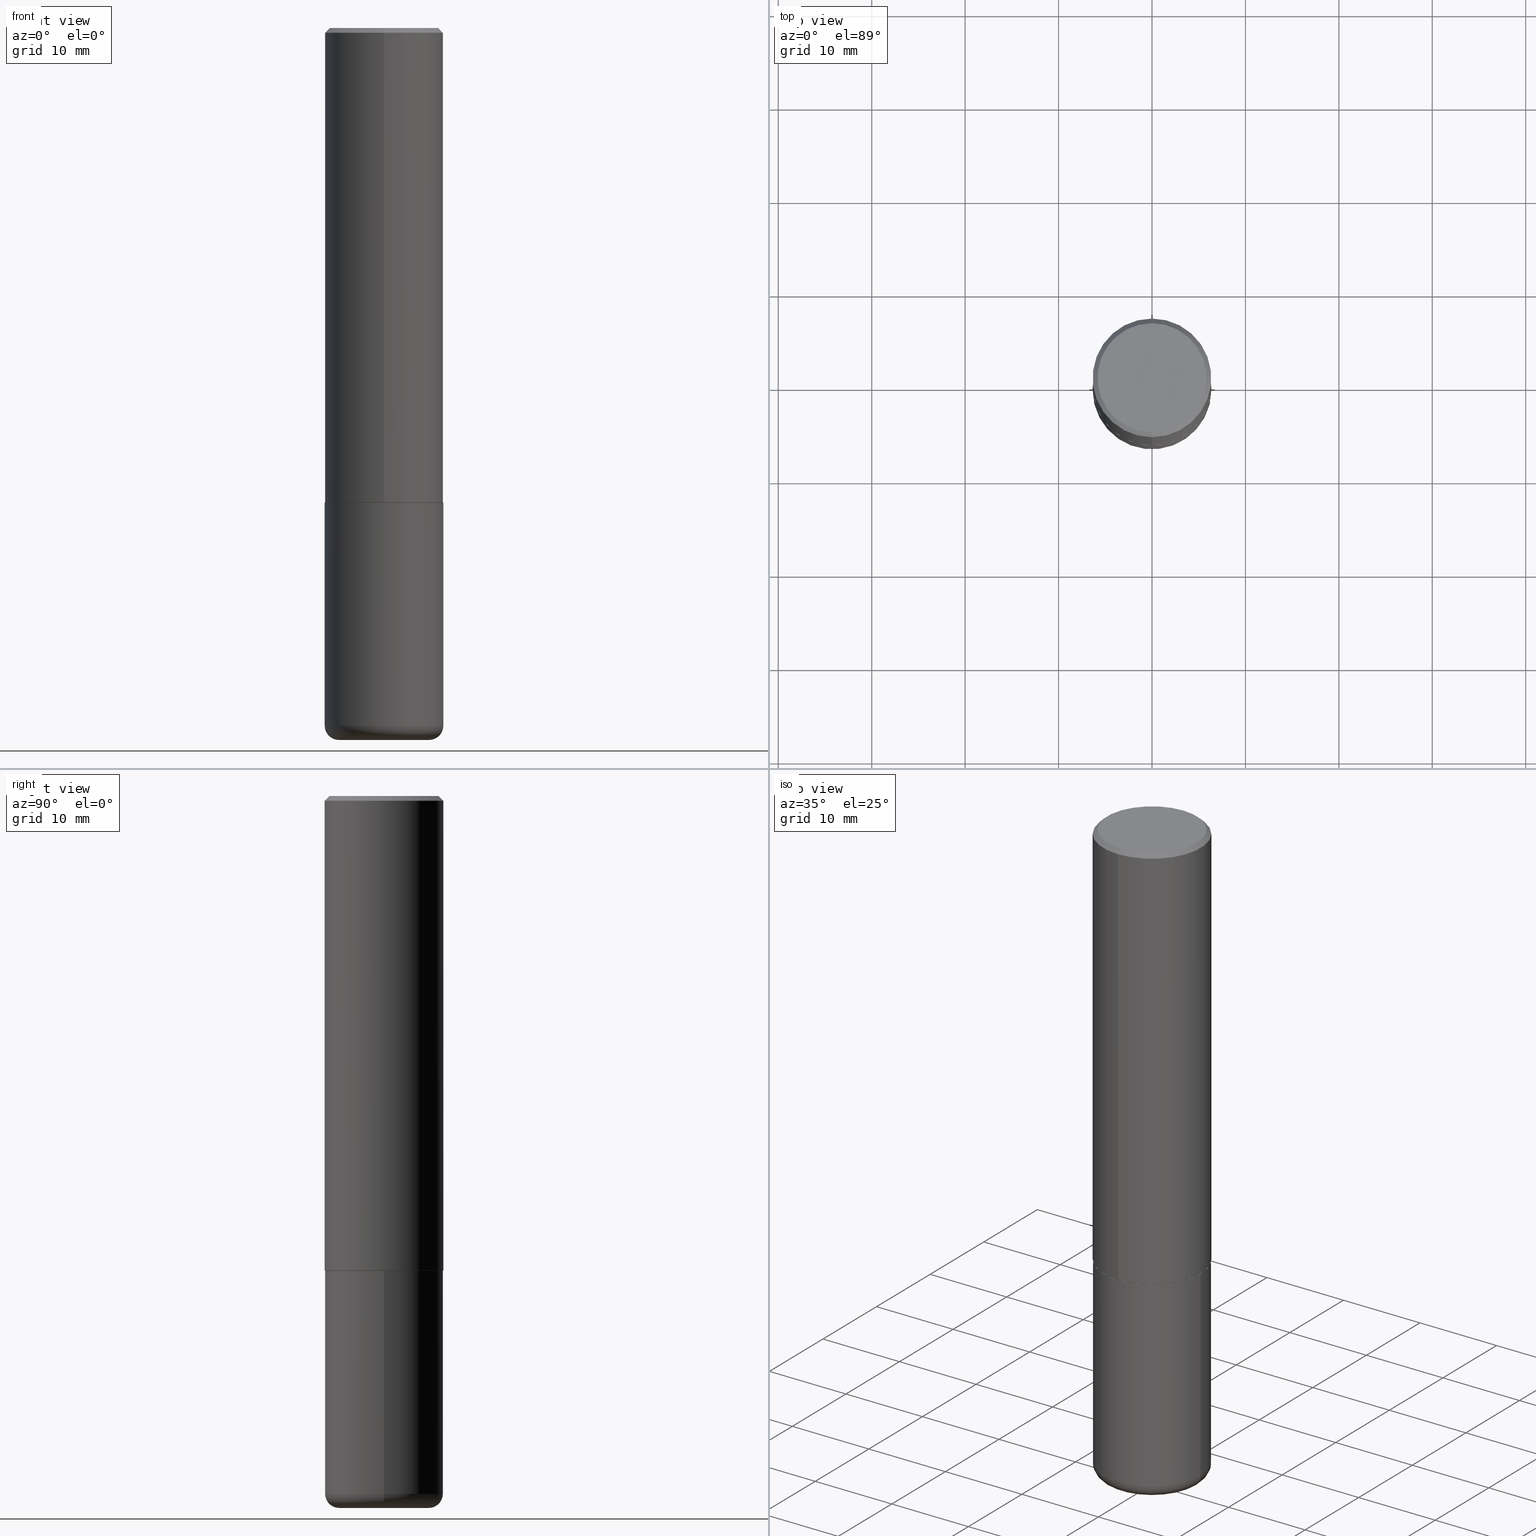
[diagram: canonical four-view strip — front | top / right | iso, engineering-drawing reading convention]
A machine part, canonical four-view strip (front | top / right | iso — engineering-drawing reading convention). The complete STEP part file that produces these views, byte-faithful:
ISO-10303-21;
HEADER;
FILE_DESCRIPTION (( 'STEP AP203' ),
    '1' );
FILE_NAME ('38267.STEP',
    '2024-03-02T20:11:27',
    ( '' ),
    ( '' ),
    'SwSTEP 2.0',
    'SolidWorks 2023',
    '' );
FILE_SCHEMA (( 'CONFIG_CONTROL_DESIGN' ));
ENDSEC;

DATA;
#1 = CARTESIAN_POINT ( 'NONE',  ( 0.2500000000000000000, -8.728703347107858632E-15, -2.000000000000000444 ) ) ;
#2 = CIRCLE ( 'NONE', #139, 0.2500000000000000000 ) ;
#3 = ADVANCED_FACE ( 'NONE', ( #291 ), #254, .F. ) ;
#4 = DIRECTION ( 'NONE',  ( -6.982962677686265133E-15, -1.000000000000000000, 3.291383124896702687E-15 ) ) ;
#5 = FACE_OUTER_BOUND ( 'NONE', #15, .T. ) ;
#6 = EDGE_CURVE ( 'NONE', #182, #209, #66, .T. ) ;
#7 =( NAMED_UNIT ( * ) PLANE_ANGLE_UNIT ( ) SI_UNIT ( $, .RADIAN. ) );
#8 = ORIENTED_EDGE ( 'NONE', *, *, #393, .F. ) ;
#9 = EDGE_CURVE ( 'NONE', #376, #23, #234, .T. ) ;
#10 = DIRECTION ( 'NONE',  ( 1.000000000000000000, -6.982962677686265133E-15, 4.883557194083112340E-29 ) ) ;
#11 = ORIENTED_EDGE ( 'NONE', *, *, #285, .F. ) ;
#12 = APPLICATION_PROTOCOL_DEFINITION ( 'international standard', 'config_control_design', 1994, #55 ) ;
#13 = AXIS2_PLACEMENT_3D ( 'NONE', #350, #319, #129 ) ;
#14 = ORIENTED_EDGE ( 'NONE', *, *, #30, .T. ) ;
#15 = EDGE_LOOP ( 'NONE', ( #335, #143, #146, #29 ) ) ;
#16 = COORDINATED_UNIVERSAL_TIME_OFFSET ( 5, 0, .BEHIND. ) ;
#17 = FACE_OUTER_BOUND ( 'NONE', #25, .T. ) ;
#18 = AXIS2_PLACEMENT_3D ( 'NONE', #315, #24, #192 ) ;
#19 = CARTESIAN_POINT ( 'NONE',  ( 4.890937612370273754E-29, -6.982962677686291954E-15, -2.000000000000000444 ) ) ;
#20 = LOCAL_TIME ( 15, 11, 27.00000000000000000, #16 ) ;
#21 = APPROVAL_ROLE ( '' ) ;
#22 = DIRECTION ( 'NONE',  ( -1.000000000000000000, 6.982962677686265922E-15, -4.876176775795935793E-29 ) ) ;
#23 = VERTEX_POINT ( 'NONE', #106 ) ;
#24 = DIRECTION ( 'NONE',  ( -2.444313243422440590E-29, 3.493136170489874041E-15, 1.000000000000000000 ) ) ;
#25 = EDGE_LOOP ( 'NONE', ( #339, #215, #258, #245 ) ) ;
#26 = FACE_OUTER_BOUND ( 'NONE', #161, .T. ) ;
#27 = CIRCLE ( 'NONE', #359, 0.2489999999999999991 ) ;
#28 = APPROVAL_PERSON_ORGANIZATION ( #365, #112, #21 ) ;
#29 = ORIENTED_EDGE ( 'NONE', *, *, #236, .F. ) ;
#30 = EDGE_CURVE ( 'NONE', #23, #376, #86, .T. ) ;
#31 = DIRECTION ( 'NONE',  ( -2.444313243422440590E-29, 3.493136170489874041E-15, 1.000000000000000000 ) ) ;
#32 = CARTESIAN_POINT ( 'NONE',  ( -1.738757706743831360E-15, -0.2490000000000069935, -1.999999999999999778 ) ) ;
#33 = CARTESIAN_POINT ( 'NONE',  ( 4.888626486844882862E-29, -6.986272340979750449E-15, -2.000000000000000444 ) ) ;
#34 = DIRECTION ( 'NONE',  ( -1.000000000000000000, 7.105427357600997914E-15, 0.000000000000000000 ) ) ;
#35 = MANIFOLD_SOLID_BREP ( 'Body-Move/Copy2[2]', #294 ) ;
#36 = PRODUCT_RELATED_PRODUCT_CATEGORY ( 'detail', '', ( #82 ) ) ;
#37 = CARTESIAN_POINT ( 'NONE',  ( 4.886182173601459090E-29, -6.982779204809258546E-15, -1.999000000000000110 ) ) ;
#38 = EDGE_CURVE ( 'NONE', #396, #152, #322, .T. ) ;
#39 = AXIS2_PLACEMENT_3D ( 'NONE', #138, #256, #379 ) ;
#40 = PRODUCT_DEFINITION ( 'UNKNOWN', '', #241, #123 ) ;
#41 = LENGTH_MEASURE_WITH_UNIT ( LENGTH_MEASURE( 0.02539999999999999897 ), #206 );
#42 = MANIFOLD_SOLID_BREP ( 'Body-Move/Copy2[1]', #328 ) ;
#43 = CARTESIAN_POINT ( 'NONE',  ( -1.745740669421519543E-15, -0.2500000000000072164, -1.998999999999999444 ) ) ;
#44 = ORIENTED_EDGE ( 'NONE', *, *, #6, .F. ) ;
#45 = DIRECTION ( 'NONE',  ( -2.445468806185136597E-29, 3.491481338843145583E-15, 1.000000000000000000 ) ) ;
#46 = ORIENTED_EDGE ( 'NONE', *, *, #236, .T. ) ;
#47 =( NAMED_UNIT ( * ) SI_UNIT ( $, .STERADIAN. ) SOLID_ANGLE_UNIT ( ) );
#48 = EDGE_LOOP ( 'NONE', ( #92, #44 ) ) ;
#49 = PERSON_AND_ORGANIZATION_ROLE ( 'creator' ) ;
#50 = EDGE_CURVE ( 'NONE', #239, #51, #306, .T. ) ;
#51 = VERTEX_POINT ( 'NONE', #186 ) ;
#52 = CARTESIAN_POINT ( 'NONE',  ( 1.606081415867841067E-15, 0.2299999999999999822, -8.053652698183474938E-16 ) ) ;
#53 = PERSON_AND_ORGANIZATION ( #147, #165 ) ;
#54 = DIRECTION ( 'NONE',  ( -6.982962677686265922E-15, -1.000000000000000000, 3.500180241882337261E-15 ) ) ;
#55 = APPLICATION_CONTEXT ( 'configuration controlled 3d designs of mechanical parts and assemblies' ) ;
#56 = CALENDAR_DATE ( 2024, 2, 3 ) ;
#57 = CONICAL_SURFACE ( 'NONE', #402, 0.2500000000000000000, 0.7853981633974477239 ) ;
#58 = DIRECTION ( 'NONE',  ( -6.982962677686266711E-15, -1.000000000000000000, 3.493136170489874436E-15 ) ) ;
#59 = LOCAL_TIME ( 15, 11, 27.00000000000000000, #310 ) ;
#60 = PERSON_AND_ORGANIZATION_ROLE ( 'creator' ) ;
#61 = DIRECTION ( 'NONE',  ( 1.000000000000000000, -6.982962677686275388E-15, 0.000000000000000000 ) ) ;
#62 = ORIENTED_EDGE ( 'NONE', *, *, #278, .F. ) ;
#63 = DIRECTION ( 'NONE',  ( -2.444313243422440590E-29, 3.493136170489874041E-15, 1.000000000000000000 ) ) ;
#64 = VERTEX_POINT ( 'NONE', #370 ) ;
#65 = EDGE_CURVE ( 'NONE', #353, #275, #27, .T. ) ;
#66 = CIRCLE ( 'NONE', #13, 0.1899999999999999745 ) ;
#67 = AXIS2_PLACEMENT_3D ( 'NONE', #329, #231, #34 ) ;
#68 = DIRECTION ( 'NONE',  ( -4.937700262164378437E-15, -0.7071067811865208164, 0.7071067811865739960 ) ) ;
#69 = DIRECTION ( 'NONE',  ( 6.982962677686265922E-15, 1.000000000000000000, -3.493136170489874041E-15 ) ) ;
#70 = LINE ( 'NONE', #169, #222 ) ;
#71 = ADVANCED_FACE ( 'NONE', ( #17 ), #155, .T. ) ;
#72 = FACE_OUTER_BOUND ( 'NONE', #331, .T. ) ;
#73 = CIRCLE ( 'NONE', #290, 0.05999999999999966471 ) ;
#74 = EDGE_LOOP ( 'NONE', ( #391, #341 ) ) ;
#75 = ADVANCED_FACE ( 'NONE', ( #409 ), #81, .T. ) ;
#76 = ORIENTED_EDGE ( 'NONE', *, *, #327, .T. ) ;
#77 = MECHANICAL_CONTEXT ( 'NONE', #55, 'mechanical' ) ;
#78 = ORIENTED_EDGE ( 'NONE', *, *, #300, .F. ) ;
#79 = APPROVAL_PERSON_ORGANIZATION ( #53, #338, #183 ) ;
#80 = PERSON_AND_ORGANIZATION ( #147, #165 ) ;
#81 = PLANE ( 'NONE',  #247 ) ;
#82 = PRODUCT ( '38267', '38267', '', ( #77 ) ) ;
#83 = PERSON_AND_ORGANIZATION_ROLE ( 'design_supplier' ) ;
#84 = CARTESIAN_POINT ( 'NONE',  ( 0.2500000000000000000, -1.745740669421566678E-15, 1.219044193948983948E-29 ) ) ;
#85 = DIRECTION ( 'NONE',  ( -2.444313243422440590E-29, 3.493136170489874041E-15, 1.000000000000000000 ) ) ;
#86 = CIRCLE ( 'NONE', #387, 0.2500000000000000000 ) ;
#87 = APPROVAL_STATUS ( 'not_yet_approved' ) ;
#88 = DIRECTION ( 'NONE',  ( -2.445468806185136597E-29, 3.491481338843145583E-15, 1.000000000000000000 ) ) ;
#89 = ORIENTED_EDGE ( 'NONE', *, *, #6, .T. ) ;
#90 = CARTESIAN_POINT ( 'NONE',  ( 1.769251412042697971E-15, 0.2489999999999930047, -2.000000000000001332 ) ) ;
#91 = APPROVAL ( #252, 'UNSPECIFIED' ) ;
#92 = ORIENTED_EDGE ( 'NONE', *, *, #142, .F. ) ;
#93 = DIRECTION ( 'NONE',  ( 2.444313243422440310E-29, -3.493136170489874041E-15, -1.000000000000000000 ) ) ;
#94 = ORIENTED_EDGE ( 'NONE', *, *, #300, .T. ) ;
#95 = CARTESIAN_POINT ( 'NONE',  ( 9.503248420027907092E-47, -1.358096834866801996E-32, -3.887901211352844228E-18 ) ) ;
#96 = AXIS2_PLACEMENT_3D ( 'NONE', #407, #334, #54 ) ;
#97 = TOROIDAL_SURFACE ( 'NONE', #413, 0.1899999999999999745, 0.05999999999999968553 ) ;
#98 = CARTESIAN_POINT ( 'NONE',  ( 7.189678290184301639E-29, -1.026495513619884961E-14, -2.940000000000000391 ) ) ;
#99 = DIRECTION ( 'NONE',  ( 2.444313243422440590E-29, -3.493136170489874041E-15, -1.000000000000000000 ) ) ;
#100 = CARTESIAN_POINT ( 'NONE',  ( 9.503248420027907092E-47, -1.358096834866801996E-32, -3.887901211352844228E-18 ) ) ;
#101 = AXIS2_PLACEMENT_3D ( 'NONE', #311, #281, #158 ) ;
#102 = CARTESIAN_POINT ( 'NONE',  ( -1.715124499442882299E-15, -0.2500000000000000555, -0.01999999999999918163 ) ) ;
#103 = CARTESIAN_POINT ( 'NONE',  ( 1.675911042644703774E-15, 0.2299999999999999822, -8.073092204240238200E-16 ) ) ;
#104 = EDGE_LOOP ( 'NONE', ( #227, #62 ) ) ;
#105 = TOROIDAL_SURFACE ( 'NONE', #347, 0.1899999999999999745, 0.05999999999999968553 ) ;
#106 = CARTESIAN_POINT ( 'NONE',  ( -0.2500000000000000000, -6.847602067542319531E-15, -2.000000000000000444 ) ) ;
#107 = AXIS2_PLACEMENT_3D ( 'NONE', #52, #93, #69 ) ;
#108 = APPROVAL_PERSON_ORGANIZATION ( #399, #91, #368 ) ;
#109 = VERTEX_POINT ( 'NONE', #43 ) ;
#110 = DIRECTION ( 'NONE',  ( -2.445468806185136597E-29, 3.491481338843145583E-15, 1.000000000000000000 ) ) ;
#111 = ORIENTED_EDGE ( 'NONE', *, *, #50, .T. ) ;
#112 = APPROVAL ( #153, 'UNSPECIFIED' ) ;
#113 = CALENDAR_DATE ( 2024, 2, 3 ) ;
#114 = APPROVAL_DATE_TIME ( #218, #91 ) ;
#115 = ADVANCED_FACE ( 'NONE', ( #188 ), #282, .T. ) ;
#116 = AXIS2_PLACEMENT_3D ( 'NONE', #194, #357, #133 ) ;
#117 = CC_DESIGN_SECURITY_CLASSIFICATION ( #268, ( #241 ) ) ;
#118 = DATE_TIME_ROLE ( 'creation_date' ) ;
#119 = DIRECTION ( 'NONE',  ( 1.000000000000000000, -6.982962677686266711E-15, 0.000000000000000000 ) ) ;
#120 = EDGE_CURVE ( 'NONE', #239, #376, #249, .T. ) ;
#121 = CALENDAR_DATE ( 2024, 2, 3 ) ;
#122 = CARTESIAN_POINT ( 'NONE',  ( 7.336406418555408669E-29, -1.047444401652943478E-14, -2.999999999999999556 ) ) ;
#123 = DESIGN_CONTEXT ( 'detailed design', #246, 'design' ) ;
#124 = DATE_TIME_ROLE ( 'classification_date' ) ;
#125 = CARTESIAN_POINT ( 'NONE',  ( 0.000000000000000000, 0.000000000000000000, 0.000000000000000000 ) ) ;
#126 = VERTEX_POINT ( 'NONE', #253 ) ;
#127 = AXIS2_PLACEMENT_3D ( 'NONE', #125, #219, #58 ) ;
#128 = FACE_OUTER_BOUND ( 'NONE', #229, .T. ) ;
#129 = DIRECTION ( 'NONE',  ( 1.000000000000000000, -6.982962677686273021E-15, 0.000000000000000000 ) ) ;
#130 = EDGE_CURVE ( 'NONE', #109, #396, #221, .T. ) ;
#131 = ORIENTED_EDGE ( 'NONE', *, *, #330, .T. ) ;
#132 = DIRECTION ( 'NONE',  ( -1.000000000000000000, 6.982962677686265922E-15, -4.876176775795935793E-29 ) ) ;
#133 = DIRECTION ( 'NONE',  ( -6.982962677686266711E-15, -1.000000000000000000, 3.493136170489874436E-15 ) ) ;
#134 = CIRCLE ( 'NONE', #361, 0.2299999999999999822 ) ;
#135 = LOCAL_TIME ( 15, 11, 27.00000000000000000, #408 ) ;
#136 = CC_DESIGN_DATE_AND_TIME_ASSIGNMENT ( #313, #118, ( #40 ) ) ;
#137 = CARTESIAN_POINT ( 'NONE',  ( 4.890937612370273754E-29, -6.982962677686291954E-15, -2.000000000000000444 ) ) ;
#138 = CARTESIAN_POINT ( 'NONE',  ( 4.888626486844894878E-31, -6.986272340979767558E-17, -0.02000000000000005593 ) ) ;
#139 = AXIS2_PLACEMENT_3D ( 'NONE', #385, #356, #171 ) ;
#140 = CC_DESIGN_APPROVAL ( #338, ( #241 ) ) ;
#141 = ADVANCED_BREP_SHAPE_REPRESENTATION ( '38267', ( #42, #35, #323 ), #316 ) ;
#142 = EDGE_CURVE ( 'NONE', #209, #182, #240, .T. ) ;
#143 = ORIENTED_EDGE ( 'NONE', *, *, #393, .T. ) ;
#144 = FACE_OUTER_BOUND ( 'NONE', #277, .T. ) ;
#145 = CYLINDRICAL_SURFACE ( 'NONE', #266, 0.2500000000000000000 ) ;
#146 = ORIENTED_EDGE ( 'NONE', *, *, #130, .T. ) ;
#147 = PERSON ( 'UNSPECIFIED', 'UNSPECIFIED', 'UNSPECIFIED', ('UNSPECIFIED'), ('UNSPECIFIED'), ('UNSPECIFIED') ) ;
#148 = AXIS2_PLACEMENT_3D ( 'NONE', #292, #325, #260 ) ;
#149 = EDGE_CURVE ( 'NONE', #209, #239, #73, .T. ) ;
#150 = ORIENTED_EDGE ( 'NONE', *, *, #352, .F. ) ;
#151 = PERSON_AND_ORGANIZATION_ROLE ( 'design_owner' ) ;
#152 = VERTEX_POINT ( 'NONE', #349 ) ;
#153 = APPROVAL_STATUS ( 'not_yet_approved' ) ;
#154 = COORDINATED_UNIVERSAL_TIME_OFFSET ( 5, 0, .BEHIND. ) ;
#155 = CYLINDRICAL_SURFACE ( 'NONE', #127, 0.2500000000000001110 ) ;
#156 = VECTOR ( 'NONE', #293, 39.37007874015748143 ) ;
#157 = PERSON_AND_ORGANIZATION ( #147, #165 ) ;
#158 = DIRECTION ( 'NONE',  ( 1.000000000000000000, -6.982962677686262766E-15, 0.000000000000000000 ) ) ;
#159 = DATE_AND_TIME ( #280, #59 ) ;
#160 = DIRECTION ( 'NONE',  ( -2.444313243422440590E-29, 3.493136170489874041E-15, 1.000000000000000000 ) ) ;
#161 = EDGE_LOOP ( 'NONE', ( #395, #355, #176, #78 ) ) ;
#162 = DIRECTION ( 'NONE',  ( -6.982962677686265922E-15, -1.000000000000000000, 3.278217592397112312E-15 ) ) ;
#163 = CARTESIAN_POINT ( 'NONE',  ( 4.888626486844882862E-29, -6.986272340979750449E-15, -2.000000000000000444 ) ) ;
#164 = AXIS2_PLACEMENT_3D ( 'NONE', #163, #416, #374 ) ;
#165 = ORGANIZATION ( 'UNSPECIFIED', 'UNSPECIFIED', '' ) ;
#166 = LINE ( 'NONE', #415, #156 ) ;
#167 = EDGE_LOOP ( 'NONE', ( #308, #14 ) ) ;
#168 = FACE_OUTER_BOUND ( 'NONE', #243, .T. ) ;
#169 = CARTESIAN_POINT ( 'NONE',  ( -1.738757706743831360E-15, -0.2490000000000069935, -1.999999999999999778 ) ) ;
#170 = CONICAL_SURFACE ( 'NONE', #189, 0.2489999999999999991, 0.7853981633974141952 ) ;
#171 = DIRECTION ( 'NONE',  ( -6.982962677686265922E-15, -1.000000000000000000, 3.500180241882337261E-15 ) ) ;
#172 = LOCAL_TIME ( 15, 11, 27.00000000000000000, #154 ) ;
#173 = LINE ( 'NONE', #199, #333 ) ;
#174 = CIRCLE ( 'NONE', #230, 0.2489999999999999991 ) ;
#175 = AXIS2_PLACEMENT_3D ( 'NONE', #37, #388, #205 ) ;
#176 = ORIENTED_EDGE ( 'NONE', *, *, #180, .F. ) ;
#177 =( CONVERSION_BASED_UNIT ( 'INCH', #41 ) LENGTH_UNIT ( ) NAMED_UNIT ( #259 ) );
#178 = DIRECTION ( 'NONE',  ( -6.982962677686265133E-15, -1.000000000000000000, 3.291383124896702687E-15 ) ) ;
#179 = EDGE_LOOP ( 'NONE', ( #211, #76, #398, #270 ) ) ;
#180 = EDGE_CURVE ( 'NONE', #109, #64, #301, .T. ) ;
#181 = DIRECTION ( 'NONE',  ( 1.000000000000000000, 0.000000000000000000, 0.000000000000000000 ) ) ;
#182 = VERTEX_POINT ( 'NONE', #411 ) ;
#183 = APPROVAL_ROLE ( '' ) ;
#184 = ADVANCED_FACE ( 'NONE', ( #128 ), #105, .T. ) ;
#185 = ORIENTED_EDGE ( 'NONE', *, *, #149, .T. ) ;
#186 = CARTESIAN_POINT ( 'NONE',  ( -0.2499999999999998335, -8.488598296798600727E-15, -2.940000000000000391 ) ) ;
#187 = ADVANCED_FACE ( 'NONE', ( #72 ), #145, .T. ) ;
#188 = FACE_OUTER_BOUND ( 'NONE', #304, .T. ) ;
#189 = AXIS2_PLACEMENT_3D ( 'NONE', #263, #63, #262 ) ;
#190 = PERSON_AND_ORGANIZATION ( #147, #165 ) ;
#191 = CARTESIAN_POINT ( 'NONE',  ( -1.745740669421567467E-15, -0.2500000000000001110, 8.732840426224690034E-16 ) ) ;
#192 = DIRECTION ( 'NONE',  ( -6.982962677686265133E-15, -1.000000000000000000, 3.291383124896702687E-15 ) ) ;
#193 = ORIENTED_EDGE ( 'NONE', *, *, #278, .T. ) ;
#194 = CARTESIAN_POINT ( 'NONE',  ( 0.000000000000000000, 0.000000000000000000, 0.000000000000000000 ) ) ;
#195 = ORIENTED_EDGE ( 'NONE', *, *, #405, .F. ) ;
#196 = VECTOR ( 'NONE', #31, 39.37007874015748143 ) ;
#197 = CARTESIAN_POINT ( 'NONE',  ( 0.1899999999999999745, -1.180120692528982640E-14, -2.999999999999999556 ) ) ;
#198 = ADVANCED_FACE ( 'NONE', ( #362 ), #342, .F. ) ;
#199 = CARTESIAN_POINT ( 'NONE',  ( 1.745740669421566875E-15, 0.2499999999999999167, -0.02000000000000093023 ) ) ;
#200 = CARTESIAN_POINT ( 'NONE',  ( 1.772804125721499659E-15, 0.2489999999999930325, -2.000000000000001332 ) ) ;
#201 = VECTOR ( 'NONE', #160, 39.37007874015748143 ) ;
#202 = FACE_OUTER_BOUND ( 'NONE', #363, .T. ) ;
#203 = LINE ( 'NONE', #102, #383 ) ;
#204 = CC_DESIGN_PERSON_AND_ORGANIZATION_ASSIGNMENT ( #397, #60, ( #40 ) ) ;
#205 = DIRECTION ( 'NONE',  ( -6.982962677686265922E-15, -1.000000000000000000, 3.278217592397112312E-15 ) ) ;
#206 =( LENGTH_UNIT ( ) NAMED_UNIT ( * ) SI_UNIT ( $, .METRE. ) );
#207 = AXIS2_PLACEMENT_3D ( 'NONE', #238, #110, #267 ) ;
#208 = CARTESIAN_POINT ( 'NONE',  ( 7.189678290184301639E-29, -1.026495513619884961E-14, -2.940000000000000391 ) ) ;
#209 = VERTEX_POINT ( 'NONE', #197 ) ;
#210 = EDGE_CURVE ( 'NONE', #126, #414, #134, .T. ) ;
#211 = ORIENTED_EDGE ( 'NONE', *, *, #142, .T. ) ;
#212 = SHAPE_DEFINITION_REPRESENTATION ( #312, #141 ) ;
#213 = VECTOR ( 'NONE', #228, 39.37007874015748854 ) ;
#214 = CC_DESIGN_APPROVAL ( #112, ( #40 ) ) ;
#215 = ORIENTED_EDGE ( 'NONE', *, *, #257, .T. ) ;
#216 = CARTESIAN_POINT ( 'NONE',  ( 0.1899999999999999745, -1.159171804495923808E-14, -2.940000000000000391 ) ) ;
#217 = EDGE_CURVE ( 'NONE', #275, #64, #417, .T. ) ;
#218 = DATE_AND_TIME ( #113, #172 ) ;
#219 = DIRECTION ( 'NONE',  ( -2.444313243422440590E-29, 3.493136170489874041E-15, 1.000000000000000000 ) ) ;
#220 = COORDINATED_UNIVERSAL_TIME_OFFSET ( 5, 0, .BEHIND. ) ;
#221 = LINE ( 'NONE', #191, #201 ) ;
#222 = VECTOR ( 'NONE', #68, 39.37007874015748854 ) ;
#223 = ADVANCED_FACE ( 'NONE', ( #26 ), #170, .T. ) ;
#224 = DIRECTION ( 'NONE',  ( 1.000000000000000000, -6.982962677686273021E-15, 0.000000000000000000 ) ) ;
#225 = ORIENTED_EDGE ( 'NONE', *, *, #327, .F. ) ;
#226 = CARTESIAN_POINT ( 'NONE',  ( 4.888626486844894878E-31, -6.986272340979767558E-17, -0.02000000000000005593 ) ) ;
#227 = ORIENTED_EDGE ( 'NONE', *, *, #65, .F. ) ;
#228 = DIRECTION ( 'NONE',  ( 5.024295867787889629E-15, 0.7071067811865257013, 0.7071067811865691111 ) ) ;
#229 = EDGE_LOOP ( 'NONE', ( #225, #89, #185, #11 ) ) ;
#230 = AXIS2_PLACEMENT_3D ( 'NONE', #33, #296, #4 ) ;
#231 = DIRECTION ( 'NONE',  ( 7.105427357601001859E-15, 1.000000000000000000, -3.491481338843145583E-15 ) ) ;
#232 = DIRECTION ( 'NONE',  ( -2.444313243422440590E-29, 3.493136170489874041E-15, 1.000000000000000000 ) ) ;
#233 = DIRECTION ( 'NONE',  ( 2.438088387897960049E-29, -3.491481338843145188E-15, -1.000000000000000000 ) ) ;
#234 = CIRCLE ( 'NONE', #382, 0.2500000000000000000 ) ;
#235 = DIRECTION ( 'NONE',  ( -2.444313243422440590E-29, 3.493136170489874041E-15, 1.000000000000000000 ) ) ;
#236 = EDGE_CURVE ( 'NONE', #152, #396, #2, .T. ) ;
#237 = DIRECTION ( 'NONE',  ( -4.851104656540961119E-15, -0.7071067811865495711, -0.7071067811865454633 ) ) ;
#238 = CARTESIAN_POINT ( 'NONE',  ( 0.000000000000000000, 0.000000000000000000, 0.000000000000000000 ) ) ;
#239 = VERTEX_POINT ( 'NONE', #377 ) ;
#240 = CIRCLE ( 'NONE', #332, 0.1899999999999999745 ) ;
#241 = PRODUCT_DEFINITION_FORMATION_WITH_SPECIFIED_SOURCE ( 'ANY', '', #82, .NOT_KNOWN. ) ;
#242 = DIRECTION ( 'NONE',  ( 1.000000000000000000, -6.982962677686266711E-15, 4.876176775795935793E-29 ) ) ;
#243 = EDGE_LOOP ( 'NONE', ( #289, #255, #309, #150 ) ) ;
#244 = ORIENTED_EDGE ( 'NONE', *, *, #285, .T. ) ;
#245 = ORIENTED_EDGE ( 'NONE', *, *, #130, .F. ) ;
#246 = APPLICATION_CONTEXT ( 'configuration controlled 3d designs of mechanical parts and assemblies' ) ;
#247 = AXIS2_PLACEMENT_3D ( 'NONE', #317, #403, #22 ) ;
#248 = CALENDAR_DATE ( 2024, 2, 3 ) ;
#249 = LINE ( 'NONE', #84, #261 ) ;
#250 = DIRECTION ( 'NONE',  ( -6.982962677686266711E-15, -1.000000000000000000, 3.491481338843145583E-15 ) ) ;
#251 = ADVANCED_FACE ( 'NONE', ( #5 ), #384, .T. ) ;
#252 = APPROVAL_STATUS ( 'not_yet_approved' ) ;
#253 = CARTESIAN_POINT ( 'NONE',  ( -1.646519519465166968E-15, -0.2299999999999999822, 7.995334180013181207E-16 ) ) ;
#254 = PLANE ( 'NONE',  #164 ) ;
#255 = ORIENTED_EDGE ( 'NONE', *, *, #405, .T. ) ;
#256 = DIRECTION ( 'NONE',  ( 2.444313243422440590E-29, -3.493136170489874041E-15, -1.000000000000000000 ) ) ;
#257 = EDGE_CURVE ( 'NONE', #64, #152, #324, .T. ) ;
#258 = ORIENTED_EDGE ( 'NONE', *, *, #38, .F. ) ;
#259 = DIMENSIONAL_EXPONENTS ( 1.000000000000000000, 0.000000000000000000, 0.000000000000000000, 0.000000000000000000, 0.000000000000000000, 0.000000000000000000, 0.000000000000000000 ) ;
#260 = DIRECTION ( 'NONE',  ( 1.000000000000000000, -6.982962677686262766E-15, 0.000000000000000000 ) ) ;
#261 = VECTOR ( 'NONE', #372, 39.37007874015748143 ) ;
#262 = DIRECTION ( 'NONE',  ( -6.982962677686265133E-15, -1.000000000000000000, 3.291383124896702687E-15 ) ) ;
#263 = CARTESIAN_POINT ( 'NONE',  ( 4.888626486844882862E-29, -6.986272340979750449E-15, -2.000000000000000444 ) ) ;
#264 = CC_DESIGN_PERSON_AND_ORGANIZATION_ASSIGNMENT ( #157, #83, ( #241 ) ) ;
#265 = DIRECTION ( 'NONE',  ( 1.000000000000000000, -6.982962677686265133E-15, 4.883557194083112340E-29 ) ) ;
#266 = AXIS2_PLACEMENT_3D ( 'NONE', #271, #392, #242 ) ;
#267 = DIRECTION ( 'NONE',  ( 1.000000000000000000, -6.982962677686266711E-15, 4.876176775795935793E-29 ) ) ;
#268 = SECURITY_CLASSIFICATION ( '', '', #279 ) ;
#269 = ADVANCED_FACE ( 'NONE', ( #168 ), #57, .T. ) ;
#270 = ORIENTED_EDGE ( 'NONE', *, *, #149, .F. ) ;
#271 = CARTESIAN_POINT ( 'NONE',  ( 0.000000000000000000, 0.000000000000000000, 0.000000000000000000 ) ) ;
#272 = ORIENTED_EDGE ( 'NONE', *, *, #9, .F. ) ;
#273 = CIRCLE ( 'NONE', #67, 0.05999999999999966471 ) ;
#274 = CIRCLE ( 'NONE', #348, 0.2299999999999999822 ) ;
#275 = VERTEX_POINT ( 'NONE', #200 ) ;
#276 = DATE_AND_TIME ( #121, #404 ) ;
#277 = EDGE_LOOP ( 'NONE', ( #111, #131, #272, #305 ) ) ;
#278 = EDGE_CURVE ( 'NONE', #275, #353, #174, .T. ) ;
#279 = SECURITY_CLASSIFICATION_LEVEL ( 'unclassified' ) ;
#280 = CALENDAR_DATE ( 2024, 2, 3 ) ;
#281 = DIRECTION ( 'NONE',  ( -2.445468806185136597E-29, 3.491481338843145583E-15, 1.000000000000000000 ) ) ;
#282 = CONICAL_SURFACE ( 'NONE', #18, 0.2489999999999999991, 0.7853981633974141952 ) ;
#283 = CIRCLE ( 'NONE', #175, 0.2500000000000002776 ) ;
#284 = DIRECTION ( 'NONE',  ( -2.445468806185136597E-29, 3.491481338843145583E-15, 1.000000000000000000 ) ) ;
#285 = EDGE_CURVE ( 'NONE', #51, #239, #295, .T. ) ;
#286 = CARTESIAN_POINT ( 'NONE',  ( 4.890937612370273754E-29, -6.982962677686291954E-15, -2.000000000000000444 ) ) ;
#287 = ORIENTED_EDGE ( 'NONE', *, *, #217, .F. ) ;
#288 = CARTESIAN_POINT ( 'NONE',  ( 4.886182173601459090E-29, -6.982779204809258546E-15, -1.999000000000000110 ) ) ;
#289 = ORIENTED_EDGE ( 'NONE', *, *, #210, .F. ) ;
#290 = AXIS2_PLACEMENT_3D ( 'NONE', #216, #250, #61 ) ;
#291 = FACE_OUTER_BOUND ( 'NONE', #104, .T. ) ;
#292 = CARTESIAN_POINT ( 'NONE',  ( 7.189678290184301639E-29, -1.026495513619884961E-14, -2.940000000000000391 ) ) ;
#293 = DIRECTION ( 'NONE',  ( -2.445468806185136877E-29, 3.491481338843145188E-15, 1.000000000000000000 ) ) ;
#294 = CLOSED_SHELL ( 'NONE', ( #223, #71, #269, #307, #251, #115, #3, #198 ) ) ;
#295 = CIRCLE ( 'NONE', #148, 0.2500000000000000000 ) ;
#296 = DIRECTION ( 'NONE',  ( -2.444313243422440590E-29, 3.493136170489874041E-15, 1.000000000000000000 ) ) ;
#297 = ADVANCED_FACE ( 'NONE', ( #354 ), #358, .F. ) ;
#298 = FACE_OUTER_BOUND ( 'NONE', #179, .T. ) ;
#299 = DIRECTION ( 'NONE',  ( -6.982962677686265922E-15, -1.000000000000000000, 3.493136170489874041E-15 ) ) ;
#300 = EDGE_CURVE ( 'NONE', #353, #109, #70, .T. ) ;
#301 = CIRCLE ( 'NONE', #412, 0.2500000000000002776 ) ;
#302 = DIRECTION ( 'NONE',  ( 0.000000000000000000, 0.000000000000000000, 1.000000000000000000 ) ) ;
#303 = DIRECTION ( 'NONE',  ( -2.445468806185136597E-29, 3.491481338843145583E-15, 1.000000000000000000 ) ) ;
#304 = EDGE_LOOP ( 'NONE', ( #287, #193, #94, #8 ) ) ;
#305 = ORIENTED_EDGE ( 'NONE', *, *, #120, .F. ) ;
#306 = CIRCLE ( 'NONE', #101, 0.2500000000000000000 ) ;
#307 = ADVANCED_FACE ( 'NONE', ( #202 ), #373, .T. ) ;
#308 = ORIENTED_EDGE ( 'NONE', *, *, #9, .T. ) ;
#309 = ORIENTED_EDGE ( 'NONE', *, *, #38, .T. ) ;
#310 = COORDINATED_UNIVERSAL_TIME_OFFSET ( 5, 0, .BEHIND. ) ;
#311 = CARTESIAN_POINT ( 'NONE',  ( 7.189678290184301639E-29, -1.026495513619884961E-14, -2.940000000000000391 ) ) ;
#312 = PRODUCT_DEFINITION_SHAPE ( 'NONE', 'NONE',  #40 ) ;
#313 = DATE_AND_TIME ( #56, #135 ) ;
#314 = CC_DESIGN_DATE_AND_TIME_ASSIGNMENT ( #343, #124, ( #268 ) ) ;
#315 = CARTESIAN_POINT ( 'NONE',  ( 4.888626486844882862E-29, -6.986272340979750449E-15, -2.000000000000000444 ) ) ;
#316 =( GEOMETRIC_REPRESENTATION_CONTEXT ( 3 ) GLOBAL_UNCERTAINTY_ASSIGNED_CONTEXT ( ( #380 ) ) GLOBAL_UNIT_ASSIGNED_CONTEXT ( ( #177, #7, #47 ) ) REPRESENTATION_CONTEXT ( 'NONE', 'WORKASPACE' ) );
#317 = CARTESIAN_POINT ( 'NONE',  ( 1.336053039146161825E-28, -1.847555615484388985E-15, -2.999999999999999556 ) ) ;
#318 = DIRECTION ( 'NONE',  ( -2.444313243422440590E-29, 3.493136170489874041E-15, 1.000000000000000000 ) ) ;
#319 = DIRECTION ( 'NONE',  ( -2.445468806185136597E-29, 3.491481338843145583E-15, 1.000000000000000000 ) ) ;
#320 = DIRECTION ( 'NONE',  ( 6.982962677686265922E-15, 1.000000000000000000, -3.500180241882337261E-15 ) ) ;
#321 = ORIENTED_EDGE ( 'NONE', *, *, #352, .T. ) ;
#322 = CIRCLE ( 'NONE', #96, 0.2500000000000000000 ) ;
#323 = AXIS2_PLACEMENT_3D ( 'NONE', #337, #302, #181 ) ;
#324 = LINE ( 'NONE', #326, #196 ) ;
#325 = DIRECTION ( 'NONE',  ( -2.445468806185136597E-29, 3.491481338843145583E-15, 1.000000000000000000 ) ) ;
#326 = CARTESIAN_POINT ( 'NONE',  ( 1.776356839400251254E-15, 0.2500000000000001110, -8.732840426224690034E-16 ) ) ;
#327 = EDGE_CURVE ( 'NONE', #182, #51, #273, .T. ) ;
#328 = CLOSED_SHELL ( 'NONE', ( #418, #367, #297, #187, #184, #75 ) ) ;
#329 = CARTESIAN_POINT ( 'NONE',  ( -0.1899999999999999745, -8.914923938254659640E-15, -2.940000000000000391 ) ) ;
#330 = EDGE_CURVE ( 'NONE', #51, #23, #166, .T. ) ;
#331 = EDGE_LOOP ( 'NONE', ( #378, #244, #336, #360 ) ) ;
#332 = AXIS2_PLACEMENT_3D ( 'NONE', #122, #88, #224 ) ;
#333 = VECTOR ( 'NONE', #351, 39.37007874015748143 ) ;
#334 = DIRECTION ( 'NONE',  ( -2.444313243422440590E-29, 3.493136170489874041E-15, 1.000000000000000000 ) ) ;
#335 = ORIENTED_EDGE ( 'NONE', *, *, #257, .F. ) ;
#336 = ORIENTED_EDGE ( 'NONE', *, *, #120, .T. ) ;
#337 = CARTESIAN_POINT ( 'NONE',  ( 0.000000000000000000, 0.000000000000000000, 0.000000000000000000 ) ) ;
#338 = APPROVAL ( #87, 'UNSPECIFIED' ) ;
#339 = ORIENTED_EDGE ( 'NONE', *, *, #180, .T. ) ;
#340 = PERSON_AND_ORGANIZATION_ROLE ( 'classification_officer' ) ;
#341 = ORIENTED_EDGE ( 'NONE', *, *, #210, .T. ) ;
#342 = PLANE ( 'NONE',  #107 ) ;
#343 = DATE_AND_TIME ( #248, #20 ) ;
#344 = DIRECTION ( 'NONE',  ( 1.000000000000000000, -6.982962677686266711E-15, 0.000000000000000000 ) ) ;
#345 = APPROVAL_DATE_TIME ( #159, #338 ) ;
#346 = CARTESIAN_POINT ( 'NONE',  ( 4.888626486844882862E-29, -6.986272340979750449E-15, -2.000000000000000444 ) ) ;
#347 = AXIS2_PLACEMENT_3D ( 'NONE', #208, #303, #10 ) ;
#348 = AXIS2_PLACEMENT_3D ( 'NONE', #100, #235, #299 ) ;
#349 = CARTESIAN_POINT ( 'NONE',  ( 1.745740669421566875E-15, 0.2499999999999999167, -0.02000000000000093023 ) ) ;
#350 = CARTESIAN_POINT ( 'NONE',  ( 7.336406418555408669E-29, -1.047444401652943478E-14, -2.999999999999999556 ) ) ;
#351 = DIRECTION ( 'NONE',  ( 4.937700262164544887E-15, 0.7071067811865446862, -0.7071067811865503483 ) ) ;
#352 = EDGE_CURVE ( 'NONE', #414, #152, #173, .T. ) ;
#353 = VERTEX_POINT ( 'NONE', #32 ) ;
#354 = FACE_OUTER_BOUND ( 'NONE', #167, .T. ) ;
#355 = ORIENTED_EDGE ( 'NONE', *, *, #217, .T. ) ;
#356 = DIRECTION ( 'NONE',  ( -2.444313243422440590E-29, 3.493136170489874041E-15, 1.000000000000000000 ) ) ;
#357 = DIRECTION ( 'NONE',  ( -2.444313243422440590E-29, 3.493136170489874041E-15, 1.000000000000000000 ) ) ;
#358 = PLANE ( 'NONE',  #394 ) ;
#359 = AXIS2_PLACEMENT_3D ( 'NONE', #346, #85, #178 ) ;
#360 = ORIENTED_EDGE ( 'NONE', *, *, #30, .F. ) ;
#361 = AXIS2_PLACEMENT_3D ( 'NONE', #95, #232, #375 ) ;
#362 = FACE_OUTER_BOUND ( 'NONE', #74, .T. ) ;
#363 = EDGE_LOOP ( 'NONE', ( #195, #364, #321, #46 ) ) ;
#364 = ORIENTED_EDGE ( 'NONE', *, *, #400, .F. ) ;
#365 = PERSON_AND_ORGANIZATION ( #147, #165 ) ;
#366 = CC_DESIGN_APPROVAL ( #91, ( #268 ) ) ;
#367 = ADVANCED_FACE ( 'NONE', ( #298 ), #97, .T. ) ;
#368 = APPROVAL_ROLE ( '' ) ;
#369 = DIRECTION ( 'NONE',  ( -2.445468806185136597E-29, 3.491481338843145583E-15, 1.000000000000000000 ) ) ;
#370 = CARTESIAN_POINT ( 'NONE',  ( 1.776356839400276103E-15, 0.2499999999999933109, -1.999000000000000998 ) ) ;
#371 = APPLICATION_PROTOCOL_DEFINITION ( 'international standard', 'config_control_design', 1994, #246 ) ;
#372 = DIRECTION ( 'NONE',  ( -2.445468806185136877E-29, 3.491481338843145188E-15, 1.000000000000000000 ) ) ;
#373 = CONICAL_SURFACE ( 'NONE', #39, 0.2500000000000000000, 0.7853981633974477239 ) ;
#374 = DIRECTION ( 'NONE',  ( -6.982962677686265922E-15, -1.000000000000000000, 3.493136170489874041E-15 ) ) ;
#375 = DIRECTION ( 'NONE',  ( -6.982962677686265922E-15, -1.000000000000000000, 3.493136170489874041E-15 ) ) ;
#376 = VERTEX_POINT ( 'NONE', #1 ) ;
#377 = CARTESIAN_POINT ( 'NONE',  ( 0.2499999999999998335, -1.201069580562041471E-14, -2.940000000000000391 ) ) ;
#378 = ORIENTED_EDGE ( 'NONE', *, *, #330, .F. ) ;
#379 = DIRECTION ( 'NONE',  ( 6.982962677686265922E-15, 1.000000000000000000, -3.500180241882337261E-15 ) ) ;
#380 = UNCERTAINTY_MEASURE_WITH_UNIT (LENGTH_MEASURE( 1.000000000000000082E-05 ), #177, 'distance_accuracy_value', 'NONE');
#381 = CC_DESIGN_PERSON_AND_ORGANIZATION_ASSIGNMENT ( #80, #340, ( #268 ) ) ;
#382 = AXIS2_PLACEMENT_3D ( 'NONE', #19, #369, #344 ) ;
#383 = VECTOR ( 'NONE', #237, 39.37007874015748143 ) ;
#384 = CYLINDRICAL_SURFACE ( 'NONE', #116, 0.2500000000000001110 ) ;
#385 = CARTESIAN_POINT ( 'NONE',  ( 4.888626486844894878E-31, -6.986272340979767558E-17, -0.02000000000000005593 ) ) ;
#386 = CARTESIAN_POINT ( 'NONE',  ( -1.715124499442882299E-15, -0.2500000000000000555, -0.01999999999999918163 ) ) ;
#387 = AXIS2_PLACEMENT_3D ( 'NONE', #286, #284, #119 ) ;
#388 = DIRECTION ( 'NONE',  ( -2.444313243422440590E-29, 3.493136170489874041E-15, 1.000000000000000000 ) ) ;
#389 = CC_DESIGN_PERSON_AND_ORGANIZATION_ASSIGNMENT ( #190, #49, ( #241 ) ) ;
#390 = CYLINDRICAL_SURFACE ( 'NONE', #207, 0.2500000000000000000 ) ;
#391 = ORIENTED_EDGE ( 'NONE', *, *, #400, .T. ) ;
#392 = DIRECTION ( 'NONE',  ( -2.445468806185136597E-29, 3.491481338843145583E-15, 1.000000000000000000 ) ) ;
#393 = EDGE_CURVE ( 'NONE', #64, #109, #283, .T. ) ;
#394 = AXIS2_PLACEMENT_3D ( 'NONE', #137, #233, #132 ) ;
#395 = ORIENTED_EDGE ( 'NONE', *, *, #65, .T. ) ;
#396 = VERTEX_POINT ( 'NONE', #386 ) ;
#397 = PERSON_AND_ORGANIZATION ( #147, #165 ) ;
#398 = ORIENTED_EDGE ( 'NONE', *, *, #50, .F. ) ;
#399 = PERSON_AND_ORGANIZATION ( #147, #165 ) ;
#400 = EDGE_CURVE ( 'NONE', #414, #126, #274, .T. ) ;
#401 = APPROVAL_DATE_TIME ( #276, #112 ) ;
#402 = AXIS2_PLACEMENT_3D ( 'NONE', #226, #99, #320 ) ;
#403 = DIRECTION ( 'NONE',  ( 2.438088387897960049E-29, -3.491481338843145188E-15, -1.000000000000000000 ) ) ;
#404 = LOCAL_TIME ( 15, 11, 27.00000000000000000, #220 ) ;
#405 = EDGE_CURVE ( 'NONE', #126, #396, #203, .T. ) ;
#406 = PERSON_AND_ORGANIZATION ( #147, #165 ) ;
#407 = CARTESIAN_POINT ( 'NONE',  ( 4.888626486844894878E-31, -6.986272340979767558E-17, -0.02000000000000005593 ) ) ;
#408 = COORDINATED_UNIVERSAL_TIME_OFFSET ( 5, 0, .BEHIND. ) ;
#409 = FACE_OUTER_BOUND ( 'NONE', #48, .T. ) ;
#410 = CC_DESIGN_PERSON_AND_ORGANIZATION_ASSIGNMENT ( #406, #151, ( #82 ) ) ;
#411 = CARTESIAN_POINT ( 'NONE',  ( -0.1899999999999999745, -8.806505557691924342E-15, -2.999999999999999556 ) ) ;
#412 = AXIS2_PLACEMENT_3D ( 'NONE', #288, #318, #162 ) ;
#413 = AXIS2_PLACEMENT_3D ( 'NONE', #98, #45, #265 ) ;
#414 = VERTEX_POINT ( 'NONE', #103 ) ;
#415 = CARTESIAN_POINT ( 'NONE',  ( -0.2500000000000000000, 1.776356839400250465E-15, -1.229733772563726445E-29 ) ) ;
#416 = DIRECTION ( 'NONE',  ( -2.444313243422440310E-29, 3.493136170489874041E-15, 1.000000000000000000 ) ) ;
#417 = LINE ( 'NONE', #90, #213 ) ;
#418 = ADVANCED_FACE ( 'NONE', ( #144 ), #390, .T. ) ;
ENDSEC;
END-ISO-10303-21;
